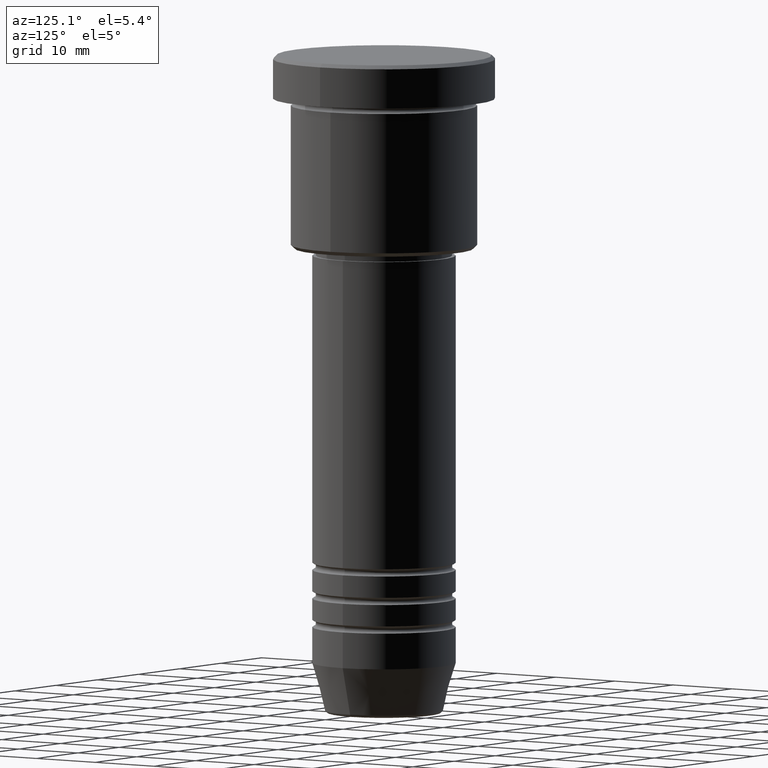
[diagram: clean part render]
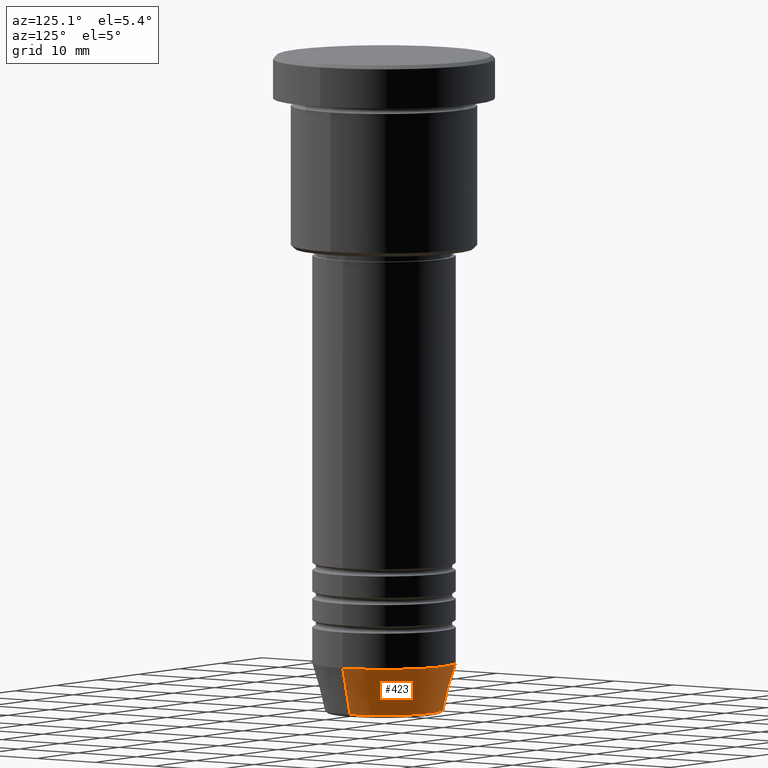
[diagram: same view with one face highlighted and labeled with its STEP entity id]
A machine part, auxiliary view. The second image highlights one B-rep face of the part: STEP entity #423.
In plain terms, the highlighted conical surface has half-angle 15 deg.
Its self-contained STEP definition (entity closure, byte-faithful):
#15 = CARTESIAN_POINT ( 'NONE',  ( 0.000000000000000000, 0.000000000000000000, -85.00000000000000000 ) ) ;
#45 = VERTEX_POINT ( 'NONE', #445 ) ;
#124 = DIRECTION ( 'NONE',  ( -0.000000000000000000, -0.000000000000000000, 1.000000000000000000 ) ) ;
#147 = VERTEX_POINT ( 'NONE', #1119 ) ;
#163 = CONICAL_SURFACE ( 'NONE', #442, 10.00000000000000000, 0.2617993877991498519 ) ;
#165 = ORIENTED_EDGE ( 'NONE', *, *, #672, .T. ) ;
#183 = DIRECTION ( 'NONE',  ( 0.2588190451025211281, 0.000000000000000000, 0.9659258262890680902 ) ) ;
#228 = VECTOR ( 'NONE', #1048, 1000.000000000000114 ) ;
#233 = ORIENTED_EDGE ( 'NONE', *, *, #237, .T. ) ;
#237 = EDGE_CURVE ( 'NONE', #45, #520, #368, .T. ) ;
#276 = DIRECTION ( 'NONE',  ( 1.000000000000000000, 0.000000000000000000, 0.000000000000000000 ) ) ;
#298 = EDGE_LOOP ( 'NONE', ( #233, #165, #1046, #418 ) ) ;
#350 = AXIS2_PLACEMENT_3D ( 'NONE', #754, #576, #950 ) ;
#356 = AXIS2_PLACEMENT_3D ( 'NONE', #15, #124, #395 ) ;
#363 = CARTESIAN_POINT ( 'NONE',  ( 0.000000000000000000, 0.000000000000000000, -85.00000000000000000 ) ) ;
#368 = CIRCLE ( 'NONE', #350, 8.223655072137194821 ) ;
#392 = VECTOR ( 'NONE', #183, 1000.000000000000114 ) ;
#395 = DIRECTION ( 'NONE',  ( 1.000000000000000000, 0.000000000000000000, 0.000000000000000000 ) ) ;
#418 = ORIENTED_EDGE ( 'NONE', *, *, #849, .F. ) ;
#423 = ADVANCED_FACE ( 'NONE', ( #811 ), #163, .T. ) ;
#442 = AXIS2_PLACEMENT_3D ( 'NONE', #363, #625, #276 ) ;
#445 = CARTESIAN_POINT ( 'NONE',  ( 8.223655072137194821, 0.000000000000000000, -91.62940952255125637 ) ) ;
#456 = CARTESIAN_POINT ( 'NONE',  ( -8.223655072137194821, 1.115877042642912054E-15, -91.62940952255125637 ) ) ;
#520 = VERTEX_POINT ( 'NONE', #456 ) ;
#576 = DIRECTION ( 'NONE',  ( -0.000000000000000000, -0.000000000000000000, 1.000000000000000000 ) ) ;
#625 = DIRECTION ( 'NONE',  ( -0.000000000000000000, -0.000000000000000000, 1.000000000000000000 ) ) ;
#629 = CARTESIAN_POINT ( 'NONE',  ( 10.00000000000000000, 0.000000000000000000, -85.00000000000000000 ) ) ;
#665 = EDGE_CURVE ( 'NONE', #147, #1120, #874, .T. ) ;
#672 = EDGE_CURVE ( 'NONE', #520, #1120, #759, .T. ) ;
#754 = CARTESIAN_POINT ( 'NONE',  ( 0.000000000000000000, 0.000000000000000000, -91.62940952255125637 ) ) ;
#759 = LINE ( 'NONE', #1017, #228 ) ;
#811 = FACE_OUTER_BOUND ( 'NONE', #298, .T. ) ;
#822 = LINE ( 'NONE', #629, #392 ) ;
#849 = EDGE_CURVE ( 'NONE', #45, #147, #822, .T. ) ;
#874 = CIRCLE ( 'NONE', #356, 10.00000000000000000 ) ;
#950 = DIRECTION ( 'NONE',  ( 1.000000000000000000, 0.000000000000000000, 0.000000000000000000 ) ) ;
#1017 = CARTESIAN_POINT ( 'NONE',  ( -10.00000000000000000, 1.224646799147353256E-15, -85.00000000000000000 ) ) ;
#1036 = CARTESIAN_POINT ( 'NONE',  ( -10.00000000000000000, 1.224646799147353256E-15, -85.00000000000000000 ) ) ;
#1046 = ORIENTED_EDGE ( 'NONE', *, *, #665, .F. ) ;
#1048 = DIRECTION ( 'NONE',  ( -0.2588190451025211281, 3.169619151431769872E-17, 0.9659258262890680902 ) ) ;
#1119 = CARTESIAN_POINT ( 'NONE',  ( 10.00000000000000000, 0.000000000000000000, -85.00000000000000000 ) ) ;
#1120 = VERTEX_POINT ( 'NONE', #1036 ) ;